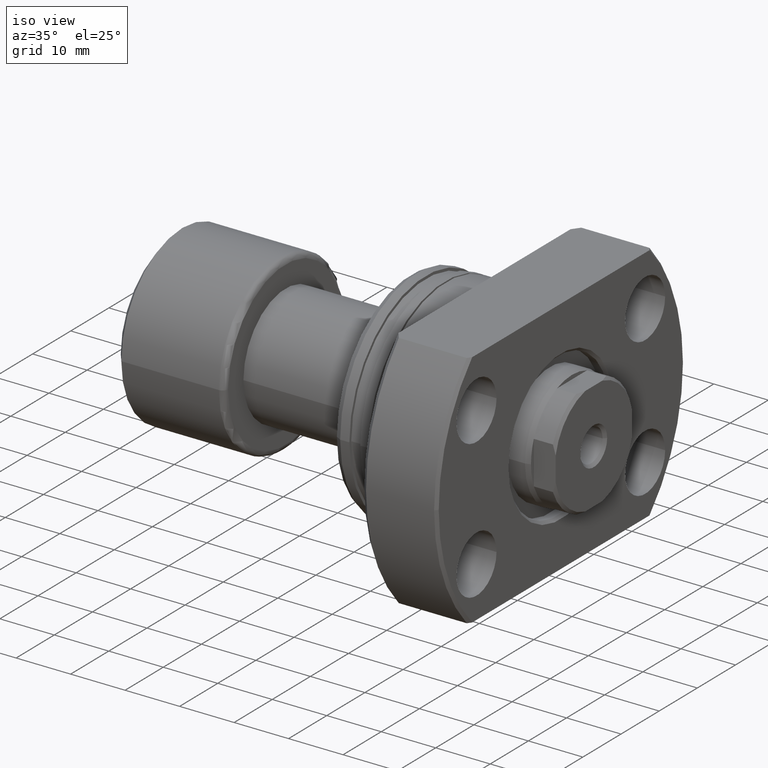
[diagram: clean part render]
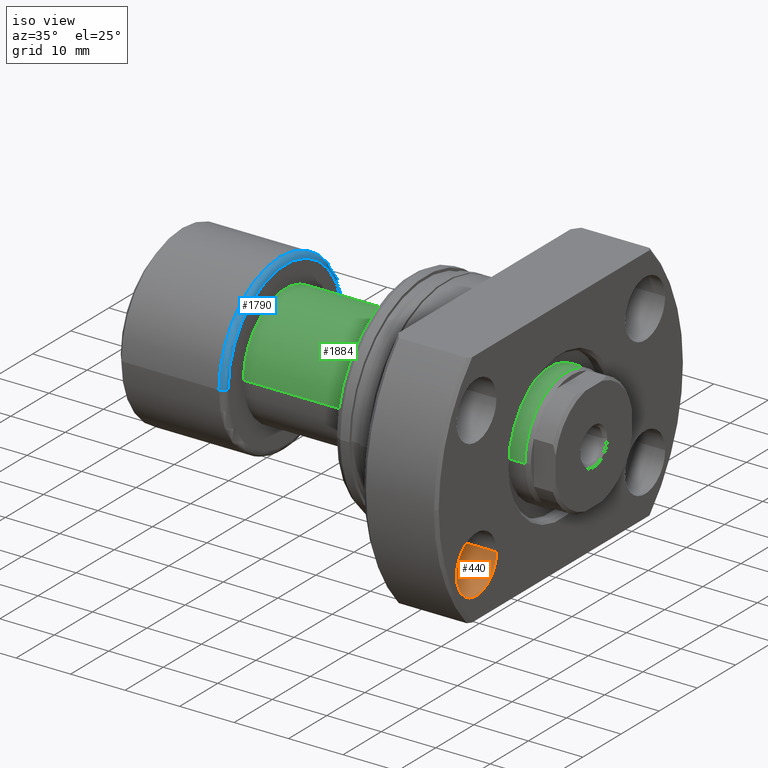
[diagram: same view with three faces highlighted in distinct colors, each labeled with its STEP entity id]
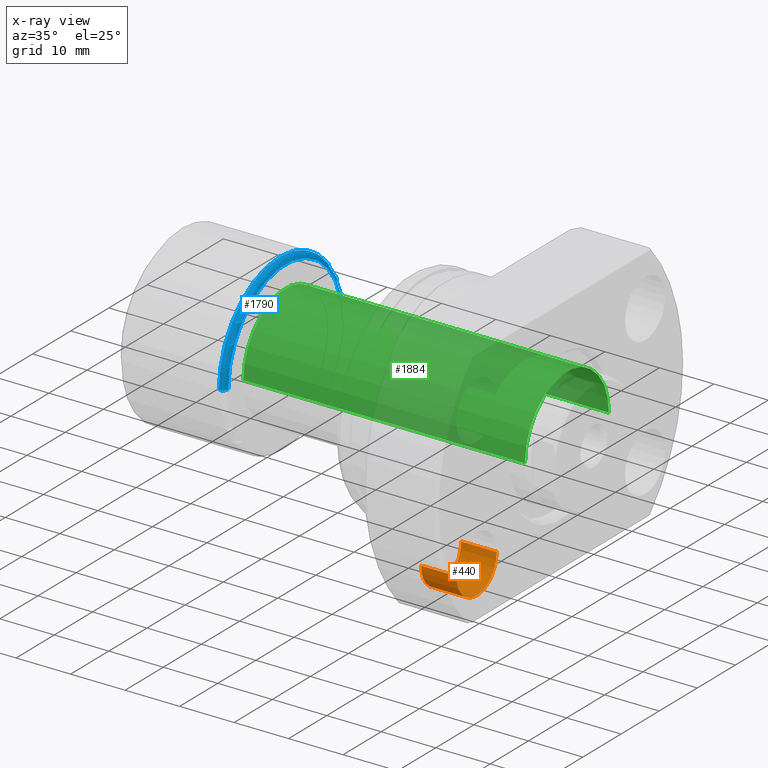
[diagram: x-ray of the same camera — body ghosted, the three highlighted faces saturated]
A machine part, iso view with three faces highlighted in distinct colors.
The next image is the same camera in x-ray (body ghosted, the three faces saturated) — at least one of them is partly hidden behind the body in this view.
Their STEP definitions:

[orange] entity #440 — the highlighted cylindrical surface (edge-blend (fillet) strip) has radius 5.25 mm, axis along (1, -0, 0).
#19 = ORIENTED_EDGE ( 'NONE', *, *, #1449, .T. ) ;
#73 = AXIS2_PLACEMENT_3D ( 'NONE', #920, #2914, #2185 ) ;
#110 = CARTESIAN_POINT ( 'NONE',  ( 20.99999999999921485, -27.35000000000060538, -12.75000000000000178 ) ) ;
#363 = ORIENTED_EDGE ( 'NONE', *, *, #2468, .F. ) ;
#365 = LINE ( 'NONE', #2071, #2189 ) ;
#405 = FACE_OUTER_BOUND ( 'NONE', #2780, .T. ) ;
#440 = ADVANCED_FACE ( 'NONE', ( #405 ), #1380, .F. ) ;
#444 = CARTESIAN_POINT ( 'NONE',  ( 27.49999999999936406, -22.10000000000079368, -12.75000000000000178 ) ) ;
#527 = VERTEX_POINT ( 'NONE', #1701 ) ;
#579 = CARTESIAN_POINT ( 'NONE',  ( 20.99999999999952038, -16.85000000000060538, -12.75000000000000178 ) ) ;
#906 = DIRECTION ( 'NONE',  ( 2.907726969256361977E-14, 1.000000000000000000, 0.000000000000000000 ) ) ;
#920 = CARTESIAN_POINT ( 'NONE',  ( 20.99999999999936762, -22.10000000000060538, -12.75000000000000178 ) ) ;
#958 = DIRECTION ( 'NONE',  ( 1.000000000000000000, -2.887798767815668620E-14, -6.310887241768094443E-30 ) ) ;
#1128 = EDGE_CURVE ( 'NONE', #1808, #527, #365, .T. ) ;
#1141 = CARTESIAN_POINT ( 'NONE',  ( 20.99999999999936762, -22.10000000000060538, -12.75000000000000178 ) ) ;
#1262 = CARTESIAN_POINT ( 'NONE',  ( 20.99999999999952038, -16.85000000000060538, -12.75000000000000178 ) ) ;
#1380 = CYLINDRICAL_SURFACE ( 'NONE', #2386, 5.250000000000000888 ) ;
#1429 = DIRECTION ( 'NONE',  ( 2.907726969256361977E-14, 1.000000000000000000, 0.000000000000000000 ) ) ;
#1449 = EDGE_CURVE ( 'NONE', #527, #2863, #2600, .T. ) ;
#1652 = ORIENTED_EDGE ( 'NONE', *, *, #2618, .F. ) ;
#1701 = CARTESIAN_POINT ( 'NONE',  ( 27.49999999999921130, -27.35000000000079368, -12.75000000000000178 ) ) ;
#1808 = VERTEX_POINT ( 'NONE', #110 ) ;
#1860 = AXIS2_PLACEMENT_3D ( 'NONE', #444, #958, #906 ) ;
#1947 = ORIENTED_EDGE ( 'NONE', *, *, #1128, .T. ) ;
#2047 = CARTESIAN_POINT ( 'NONE',  ( 27.49999999999951683, -16.85000000000079012, -12.75000000000000178 ) ) ;
#2071 = CARTESIAN_POINT ( 'NONE',  ( 20.99999999999921485, -27.35000000000060538, -12.75000000000000178 ) ) ;
#2106 = DIRECTION ( 'NONE',  ( 1.000000000000000000, -2.886466111666352516E-14, -0.000000000000000000 ) ) ;
#2122 = VERTEX_POINT ( 'NONE', #1262 ) ;
#2185 = DIRECTION ( 'NONE',  ( 2.907726969256361977E-14, 1.000000000000000000, 0.000000000000000000 ) ) ;
#2189 = VECTOR ( 'NONE', #2555, 1000.000000000000000 ) ;
#2386 = AXIS2_PLACEMENT_3D ( 'NONE', #1141, #3174, #1429 ) ;
#2468 = EDGE_CURVE ( 'NONE', #2122, #2863, #2799, .T. ) ;
#2555 = DIRECTION ( 'NONE',  ( 1.000000000000000000, -2.886466111666352516E-14, -0.000000000000000000 ) ) ;
#2600 = CIRCLE ( 'NONE', #1860, 5.250000000000000888 ) ;
#2618 = EDGE_CURVE ( 'NONE', #1808, #2122, #2853, .T. ) ;
#2780 = EDGE_LOOP ( 'NONE', ( #1652, #1947, #19, #363 ) ) ;
#2799 = LINE ( 'NONE', #579, #3030 ) ;
#2853 = CIRCLE ( 'NONE', #73, 5.250000000000000888 ) ;
#2863 = VERTEX_POINT ( 'NONE', #2047 ) ;
#2914 = DIRECTION ( 'NONE',  ( 1.000000000000000000, -2.887798767815668620E-14, -6.310887241768094443E-30 ) ) ;
#3030 = VECTOR ( 'NONE', #2106, 1000.000000000000000 ) ;
#3174 = DIRECTION ( 'NONE',  ( 1.000000000000000000, -2.886466111666352516E-14, -0.000000000000000000 ) ) ;

[blue] entity #1790 — the highlighted toroidal blend (fillet) surface has major radius 15 mm and minor (blend) radius 1 mm.
#24 = AXIS2_PLACEMENT_3D ( 'NONE', #1968, #723, #2746 ) ;
#164 = CARTESIAN_POINT ( 'NONE',  ( 19.40000000000000213, -16.00000000000000000, 0.000000000000000000 ) ) ;
#265 = EDGE_LOOP ( 'NONE', ( #1026, #2566, #1504, #1497 ) ) ;
#285 = AXIS2_PLACEMENT_3D ( 'NONE', #1709, #1200, #3224 ) ;
#341 = AXIS2_PLACEMENT_3D ( 'NONE', #1485, #1995, #2230 ) ;
#564 = VERTEX_POINT ( 'NONE', #2496 ) ;
#627 = CARTESIAN_POINT ( 'NONE',  ( 19.39999999999999858, -15.00000000000000000, 0.000000000000000000 ) ) ;
#723 = DIRECTION ( 'NONE',  ( -1.000000000000000000, -1.069542322069065801E-17, -0.000000000000000000 ) ) ;
#822 = DIRECTION ( 'NONE',  ( -1.000000000000000000, -1.069542322069065801E-17, -0.000000000000000000 ) ) ;
#1026 = ORIENTED_EDGE ( 'NONE', *, *, #1047, .T. ) ;
#1047 = EDGE_CURVE ( 'NONE', #1326, #2226, #1867, .T. ) ;
#1200 = DIRECTION ( 'NONE',  ( -1.000000000000000000, -1.069542322069065801E-17, -0.000000000000000000 ) ) ;
#1326 = VERTEX_POINT ( 'NONE', #2859 ) ;
#1485 = CARTESIAN_POINT ( 'NONE',  ( 19.39999999999999858, 15.00000000000000000, 1.836970198721029589E-15 ) ) ;
#1497 = ORIENTED_EDGE ( 'NONE', *, *, #2169, .F. ) ;
#1504 = ORIENTED_EDGE ( 'NONE', *, *, #3077, .F. ) ;
#1515 = CIRCLE ( 'NONE', #341, 1.000000000000000888 ) ;
#1604 = DIRECTION ( 'NONE',  ( 1.069542322069065801E-17, -1.000000000000000000, 0.000000000000000000 ) ) ;
#1709 = CARTESIAN_POINT ( 'NONE',  ( 20.39999999999999858, 2.181866337020894116E-16, 0.000000000000000000 ) ) ;
#1784 = DIRECTION ( 'NONE',  ( 0.000000000000000000, 0.000000000000000000, -1.000000000000000000 ) ) ;
#1790 = ADVANCED_FACE ( 'NONE', ( #2055 ), #2232, .T. ) ;
#1812 = DIRECTION ( 'NONE',  ( -1.000000000000000000, 0.000000000000000000, 0.000000000000000000 ) ) ;
#1846 = CARTESIAN_POINT ( 'NONE',  ( 20.39999999999999858, 15.00000000000000000, 1.898202538678397163E-15 ) ) ;
#1867 = CIRCLE ( 'NONE', #285, 15.00000000000000000 ) ;
#1968 = CARTESIAN_POINT ( 'NONE',  ( 19.40000000000000213, 2.074912104813987675E-16, 0.000000000000000000 ) ) ;
#1995 = DIRECTION ( 'NONE',  ( 1.309811581274509052E-33, -1.224646799147353207E-16, 1.000000000000000000 ) ) ;
#2055 = FACE_OUTER_BOUND ( 'NONE', #265, .T. ) ;
#2169 = EDGE_CURVE ( 'NONE', #1326, #2610, #2291, .T. ) ;
#2226 = VERTEX_POINT ( 'NONE', #1846 ) ;
#2230 = DIRECTION ( 'NONE',  ( 0.000000000000000000, -1.000000000000000000, -1.224646799147353454E-16 ) ) ;
#2232 = TOROIDAL_SURFACE ( 'NONE', #2382, 15.00000000000000000, 1.000000000000000888 ) ;
#2247 = CIRCLE ( 'NONE', #24, 16.00000000000000000 ) ;
#2291 = CIRCLE ( 'NONE', #2444, 1.000000000000000888 ) ;
#2382 = AXIS2_PLACEMENT_3D ( 'NONE', #3056, #822, #1604 ) ;
#2444 = AXIS2_PLACEMENT_3D ( 'NONE', #627, #1784, #1812 ) ;
#2496 = CARTESIAN_POINT ( 'NONE',  ( 19.40000000000000213, 16.00000000000000000, 1.959434878635765131E-15 ) ) ;
#2566 = ORIENTED_EDGE ( 'NONE', *, *, #2783, .T. ) ;
#2610 = VERTEX_POINT ( 'NONE', #164 ) ;
#2746 = DIRECTION ( 'NONE',  ( 0.000000000000000000, -1.000000000000000000, 0.000000000000000000 ) ) ;
#2783 = EDGE_CURVE ( 'NONE', #2226, #564, #1515, .T. ) ;
#2859 = CARTESIAN_POINT ( 'NONE',  ( 20.39999999999999858, -15.00000000000000000, 0.000000000000000000 ) ) ;
#3056 = CARTESIAN_POINT ( 'NONE',  ( 19.39999999999999858, 0.000000000000000000, 0.000000000000000000 ) ) ;
#3077 = EDGE_CURVE ( 'NONE', #2610, #564, #2247, .T. ) ;
#3224 = DIRECTION ( 'NONE',  ( 0.000000000000000000, -1.000000000000000000, 0.000000000000000000 ) ) ;

[green] entity #1884 — the highlighted cylindrical surface (partial cylindrical patch) has radius 11 mm, axis along (-1, -0, -0).
#117 = CIRCLE ( 'NONE', #1456, 11.00000000000018829 ) ;
#244 = VERTEX_POINT ( 'NONE', #2782 ) ;
#336 = CARTESIAN_POINT ( 'NONE',  ( 72.06675751232378957, -11.00000000000018829, 0.000000000000000000 ) ) ;
#500 = EDGE_CURVE ( 'NONE', #2439, #2333, #117, .T. ) ;
#532 = CARTESIAN_POINT ( 'NONE',  ( 72.06675751232378957, 7.707844717371907893E-16, 0.000000000000000000 ) ) ;
#567 = ORIENTED_EDGE ( 'NONE', *, *, #1339, .F. ) ;
#676 = FACE_OUTER_BOUND ( 'NONE', #1901, .T. ) ;
#719 = DIRECTION ( 'NONE',  ( -1.000000000000000000, -1.069542322069065801E-17, -0.000000000000000000 ) ) ;
#731 = EDGE_CURVE ( 'NONE', #2333, #962, #2272, .T. ) ;
#962 = VERTEX_POINT ( 'NONE', #1743 ) ;
#987 = DIRECTION ( 'NONE',  ( 0.000000000000000000, -1.000000000000000000, 0.000000000000000000 ) ) ;
#1017 = CIRCLE ( 'NONE', #3143, 11.00000000000000000 ) ;
#1339 = EDGE_CURVE ( 'NONE', #2439, #244, #2389, .T. ) ;
#1359 = ORIENTED_EDGE ( 'NONE', *, *, #731, .T. ) ;
#1387 = ORIENTED_EDGE ( 'NONE', *, *, #500, .T. ) ;
#1395 = CARTESIAN_POINT ( 'NONE',  ( 72.06675751232378957, 11.00000000000018829, 1.347111479062111676E-15 ) ) ;
#1456 = AXIS2_PLACEMENT_3D ( 'NONE', #532, #719, #1507 ) ;
#1507 = DIRECTION ( 'NONE',  ( 0.000000000000000000, -1.000000000000000000, 0.000000000000000000 ) ) ;
#1654 = DIRECTION ( 'NONE',  ( -1.000000000000000000, -1.069542322069065801E-17, -0.000000000000000000 ) ) ;
#1703 = DIRECTION ( 'NONE',  ( 1.069542322069065955E-17, -1.000000000000000000, 0.000000000000000000 ) ) ;
#1743 = CARTESIAN_POINT ( 'NONE',  ( 20.39999999999999858, 11.00000000000000000, 1.347111479062094124E-15 ) ) ;
#1762 = ORIENTED_EDGE ( 'NONE', *, *, #3115, .F. ) ;
#1827 = CARTESIAN_POINT ( 'NONE',  ( -1.176496554275982442E-16, 11.00000000000009237, 1.347111479062100040E-15 ) ) ;
#1884 = ADVANCED_FACE ( 'NONE', ( #676 ), #2405, .T. ) ;
#1900 = DIRECTION ( 'NONE',  ( -1.000000000000000000, -1.069542322069065801E-17, -0.000000000000000000 ) ) ;
#1901 = EDGE_LOOP ( 'NONE', ( #1387, #1359, #1762, #567 ) ) ;
#2116 = CARTESIAN_POINT ( 'NONE',  ( 1.176496554275982442E-16, -11.00000000000009237, 0.000000000000000000 ) ) ;
#2225 = CARTESIAN_POINT ( 'NONE',  ( 20.39999999999999858, 2.181866337020894116E-16, 0.000000000000000000 ) ) ;
#2272 = LINE ( 'NONE', #1827, #2594 ) ;
#2296 = VECTOR ( 'NONE', #1900, 1000.000000000000000 ) ;
#2333 = VERTEX_POINT ( 'NONE', #1395 ) ;
#2389 = LINE ( 'NONE', #2116, #2296 ) ;
#2405 = CYLINDRICAL_SURFACE ( 'NONE', #3183, 11.00000000000009237 ) ;
#2439 = VERTEX_POINT ( 'NONE', #336 ) ;
#2594 = VECTOR ( 'NONE', #2800, 1000.000000000000000 ) ;
#2782 = CARTESIAN_POINT ( 'NONE',  ( 20.39999999999999858, -11.00000000000000000, 0.000000000000000000 ) ) ;
#2800 = DIRECTION ( 'NONE',  ( -1.000000000000000000, -1.069542322069065801E-17, -0.000000000000000000 ) ) ;
#2907 = CARTESIAN_POINT ( 'NONE',  ( 0.000000000000000000, 0.000000000000000000, 0.000000000000000000 ) ) ;
#2941 = DIRECTION ( 'NONE',  ( -1.000000000000000000, -1.069542322069065801E-17, -0.000000000000000000 ) ) ;
#3115 = EDGE_CURVE ( 'NONE', #244, #962, #1017, .T. ) ;
#3143 = AXIS2_PLACEMENT_3D ( 'NONE', #2225, #2941, #987 ) ;
#3183 = AXIS2_PLACEMENT_3D ( 'NONE', #2907, #1654, #1703 ) ;